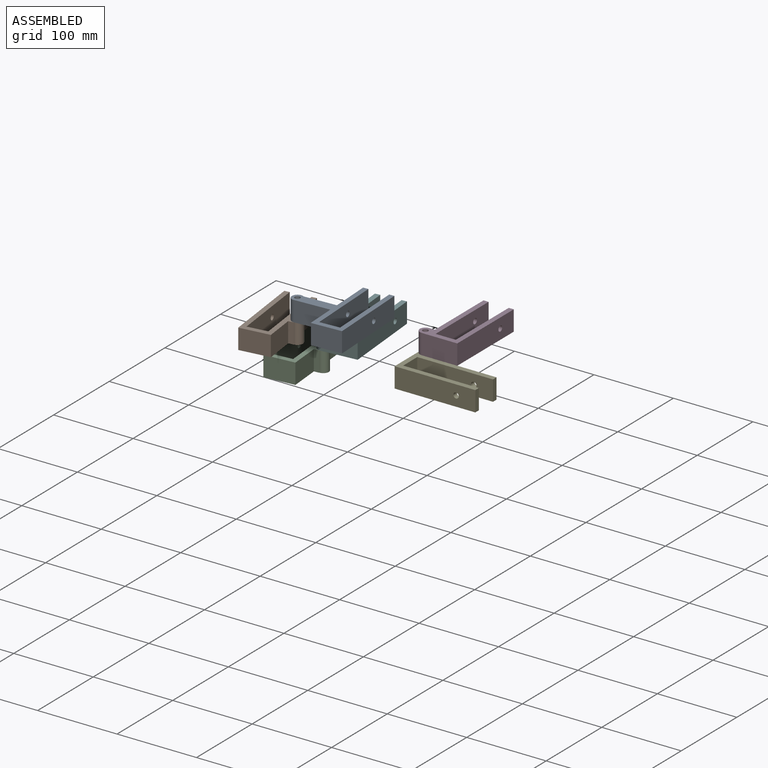
[diagram: assembled view]
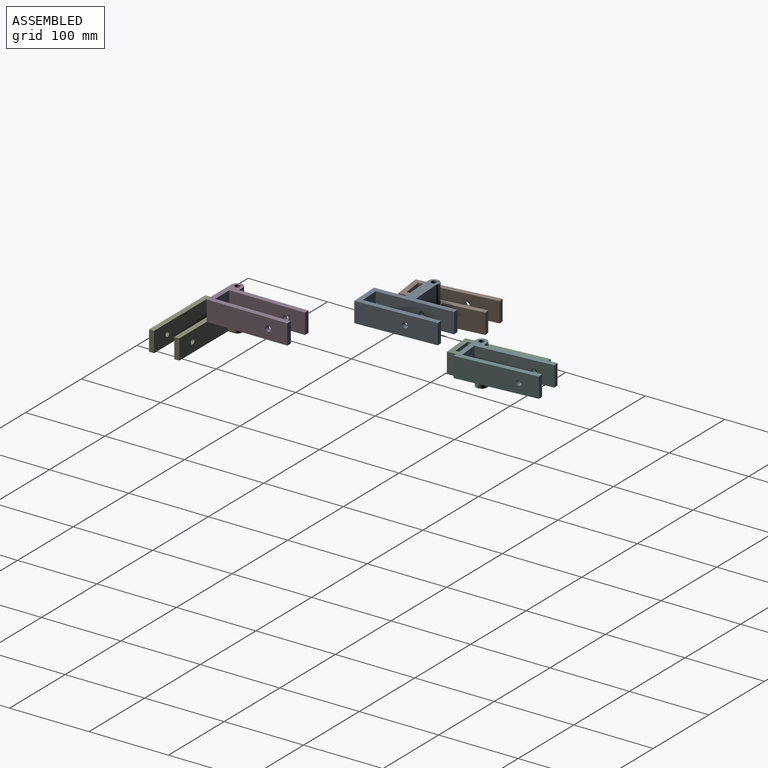
[diagram: assembled view, second angle]
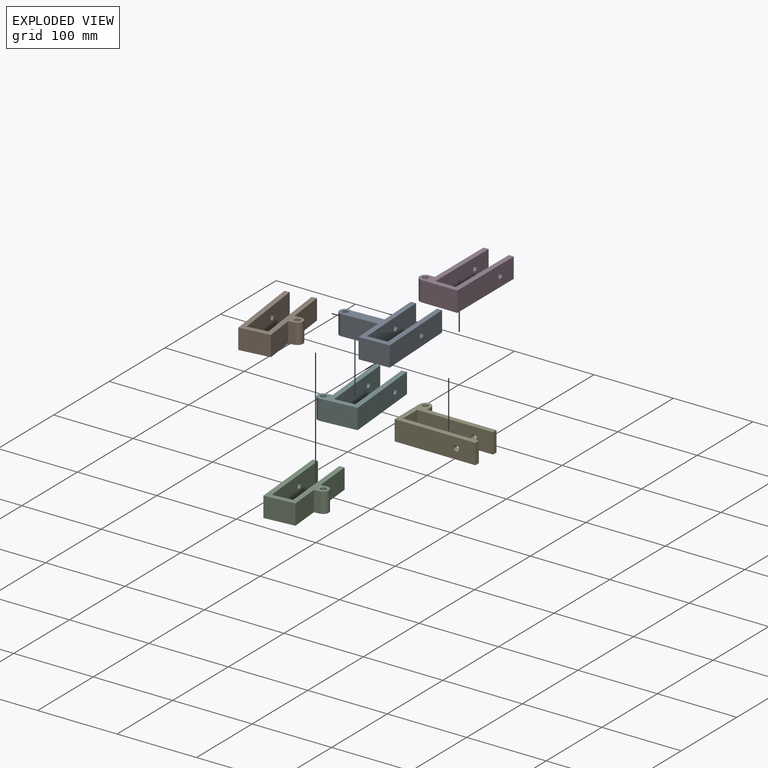
[diagram: exploded view]
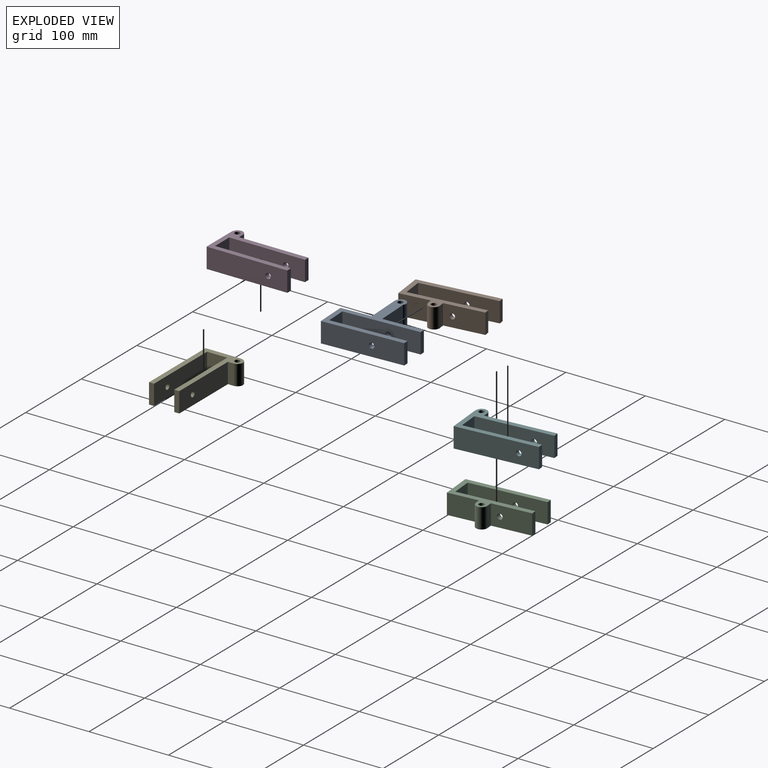
[diagram: exploded view, second angle]
ASSEMBLY  parts=6 mates=3
PART A: 17 faces, bbox 89.5x101.6x25.4 mm
  f0: plane 38.1x25.4mm, normal (0,-1,0), area 967.7mm2, adj f1,f11,f12,f13
  f1: plane 38.1x25.4mm, normal (1,0,0), area 967.7mm2, adj f0,f2,f12,f13
  f2: plane 44.45x25.4mm, normal (0,-1,0), area 1129mm2, adj f1,f3,f12,f13
  f3: cylinder r=6.98mm len=25.4mm, axis (0,0,-1), area 665.1mm2, adj f2,f4,f12,f13
  f4: plane 40.45x25.4mm, normal (0,1,0), area 1027.4mm2, adj f3,f5,f12,f13
  f5: plane 50.8x25.4mm, normal (1,0,0), area 1254.5mm2, adj f4,f6,f12,f13,f16
  f6: plane 25.4x6.35mm, normal (0,1,0), area 161.3mm2, adj f5,f7,f12,f13
  f7: plane 95.25x25.4mm, normal (-1,0,0), area 2383.5mm2, adj f6,f8,f12,f13,f16
  f8: plane 25.4x25.4mm, normal (0,1,0), area 645.2mm2, adj f7,f9,f12,f13
  f9: plane 95.25x25.4mm, normal (1,0,0), area 2383.5mm2, adj f8,f10,f12,f13,f15
  f10: plane 25.4x6.35mm, normal (0,1,0), area 161.3mm2, adj f9,f11,f12,f13
  f11: plane 101.6x25.4mm, normal (-1,0,0), area 2544.8mm2, adj f0,f10,f12,f13,f15
  f12: plane 101.6x89.53mm, normal (0,0,1), area 2059.1mm2, adj f0,f1,f2,f3,f4,f5,f6,f7
  f13: plane 101.6x89.53mm, normal (0,0,-1), area 2059.1mm2, adj f0,f1,f2,f3,f4,f5,f6,f7
  f14: cylinder r=3.43mm len=25.4mm, axis (0,0,-1), area 547.2mm2, adj f12,f13
  f15: cylinder r=3.38mm len=6.76mm, axis (-1,0,0), area 134.8mm2, adj f9,f11
  f16: cylinder r=3.38mm len=6.76mm, axis (-1,0,0), area 134.8mm2, adj f5,f7
PART B: 18 faces, bbox 52.1x101.6x25.4 mm
  f0: plane 38.1x25.4mm, normal (0,-1,0), area 967.7mm2, adj f1,f12,f13,f14
  f1: plane 38.1x25.4mm, normal (1,0,0), area 967.7mm2, adj f0,f2,f13,f14
  f2: plane 25.4x6.92mm, normal (0,-1,0), area 175.8mm2, adj f1,f3,f13,f14
  f3: plane 25.4x0.22mm, normal (1,0,0), area 5.5mm2, adj f2,f4,f13,f14
  f4: cylinder r=6.98mm len=25.4mm, axis (0,0,-1), area 562.5mm2, adj f3,f5,f13,f14
  f5: plane 25.4x6.92mm, normal (0,1,0), area 175.8mm2, adj f4,f6,f13,f14
  f6: plane 49.33x25.4mm, normal (1,0,0), area 1217mm2, adj f5,f7,f13,f14,f17
  f7: plane 25.4x6.35mm, normal (0,1,0), area 161.3mm2, adj f6,f8,f13,f14
  f8: plane 95.25x25.4mm, normal (-1,0,0), area 2383.5mm2, adj f7,f9,f13,f14,f17
  f9: plane 25.4x25.4mm, normal (0,1,0), area 645.2mm2, adj f8,f10,f13,f14
  f10: plane 95.25x25.4mm, normal (1,0,0), area 2383.5mm2, adj f9,f11,f13,f14,f16
  f11: plane 25.4x6.35mm, normal (0,1,0), area 161.3mm2, adj f10,f12,f13,f14
  f12: plane 101.6x25.4mm, normal (-1,0,0), area 2544.8mm2, adj f0,f11,f13,f14,f16
  f13: plane 101.6x52.11mm, normal (0,0,1), area 1590.8mm2, adj f0,f1,f2,f3,f4,f5,f6,f7
  f14: plane 101.6x52.11mm, normal (0,0,-1), area 1590.8mm2, adj f0,f1,f2,f3,f4,f5,f6,f7
  f15: cylinder r=3.43mm len=25.4mm, axis (0,0,-1), area 547.2mm2, adj f13,f14
  f16: cylinder r=3.38mm len=6.76mm, axis (-1,0,0), area 134.8mm2, adj f10,f12
  f17: cylinder r=3.38mm len=6.76mm, axis (-1,0,0), area 134.8mm2, adj f6,f8
PART C: same geometry as B
PART D: 16 faces, bbox 52.1x101.6x25.4 mm
  f0: plane 101.6x25.4mm, normal (-1,0,0), area 2544.8mm2, adj f1,f10,f11,f12,f14
  f1: plane 45.02x25.4mm, normal (0,-1,0), area 1143.5mm2, adj f0,f2,f11,f12
  f2: plane 25.4x0.22mm, normal (1,0,0), area 5.5mm2, adj f1,f3,f11,f12
  f3: cylinder r=6.98mm len=25.4mm, axis (0,0,-1), area 562.5mm2, adj f2,f4,f11,f12
  f4: plane 25.4x6.92mm, normal (0,1,0), area 175.8mm2, adj f3,f5,f11,f12
  f5: plane 87.43x25.4mm, normal (1,0,0), area 2184.8mm2, adj f4,f6,f11,f12,f15
  f6: plane 25.4x6.35mm, normal (0,1,0), area 161.3mm2, adj f5,f7,f11,f12
  f7: plane 95.25x25.4mm, normal (-1,0,0), area 2383.5mm2, adj f6,f8,f11,f12,f15
  f8: plane 25.4x25.4mm, normal (0,1,0), area 645.2mm2, adj f7,f9,f11,f12
  f9: plane 95.25x25.4mm, normal (1,0,0), area 2383.5mm2, adj f8,f10,f11,f12,f14
  f10: plane 25.4x6.35mm, normal (0,1,0), area 161.3mm2, adj f0,f9,f11,f12
  f11: plane 101.6x52.11mm, normal (0,0,1), area 1590.8mm2, adj f0,f1,f2,f3,f4,f5,f6,f7
  f12: plane 101.6x52.11mm, normal (0,0,-1), area 1590.8mm2, adj f0,f1,f2,f3,f4,f5,f6,f7
  f13: cylinder r=3.43mm len=25.4mm, axis (0,0,-1), area 547.2mm2, adj f11,f12
  f14: cylinder r=3.38mm len=6.76mm, axis (-1,0,0), area 134.8mm2, adj f0,f9
  f15: cylinder r=3.38mm len=6.76mm, axis (-1,0,0), area 134.8mm2, adj f5,f7
PART E: same geometry as D
PART F: same geometry as D
PLACE A rot(axis=(0.02,-1,0),180deg) t=(-34.32,18.96,58.65)mm
PLACE B rot(axis=(0,0,1),7.1deg) t=(94.89,27.56,7.85)mm
PLACE C rot(axis=(0,0,1),5deg) t=(89.53,82.44,-47.05)mm
PLACE D rot(axis=(0,-1,0),180deg) t=(351.85,-26.86,115.7)mm
PLACE E rot(axis=(-0.71,-0.71,0),180deg) t=(367.11,-141.32,90.3)mm
PLACE F rot(axis=(0.04,-1,0),180deg) t=(115.34,123.02,3.75)mm
MATE revolute C.f4 <-> F.f3  axis (0,0,1) through (71.59,54.08,-21.65)mm
MATE revolute D.f3 <-> E.f3  axis (0,0,-1) through (302.26,-91.72,90.3)mm
MATE revolute B.f4 <-> A.f3  axis (0,0,1) through (78,-1.44,33.25)mm
